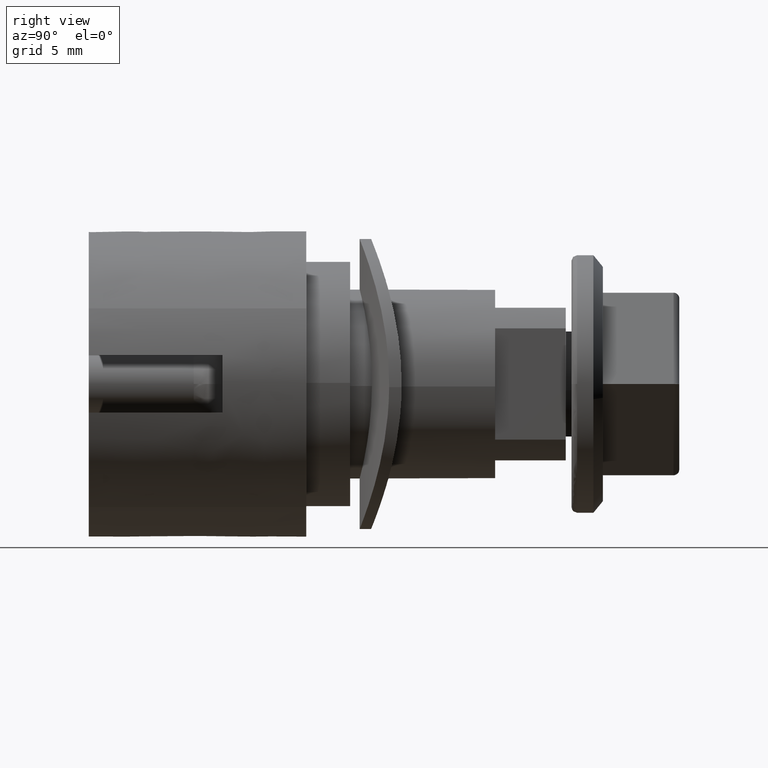
[diagram: clean part render]
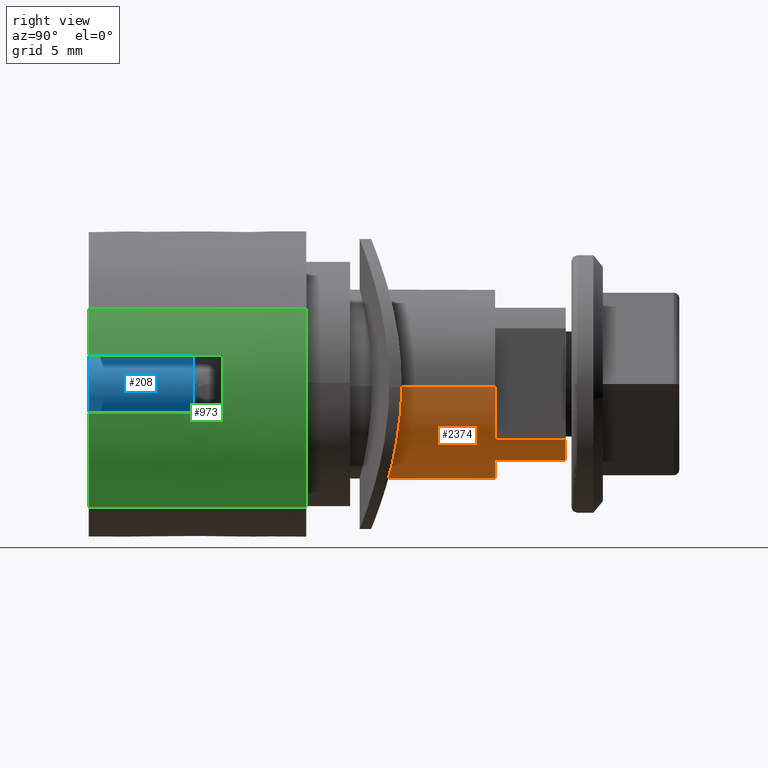
[diagram: same view with three faces highlighted in distinct colors, each labeled with its STEP entity id]
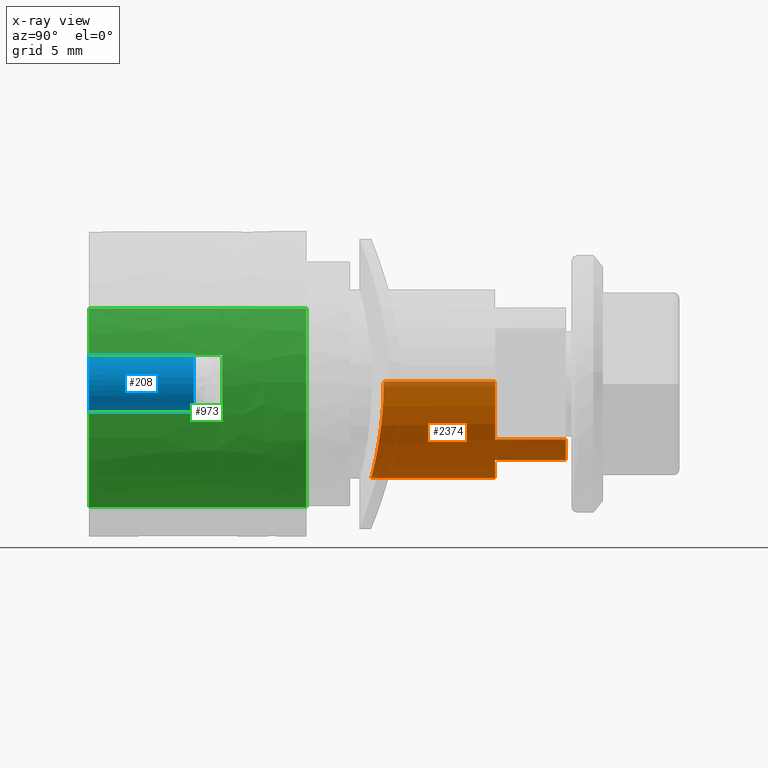
[diagram: x-ray of the same camera — body ghosted, the three highlighted faces saturated]
A machine part, right view with three faces highlighted in distinct colors.
The next image is the same camera in x-ray (body ghosted, the three faces saturated) — at least one of them is partly hidden behind the body in this view.
Their STEP definitions:

[orange] entity #2374 — the highlighted face is a freeform B-spline surface patch.
#1971=CARTESIAN_POINT('',(4.948303969794191,14.300000679224910,-0.129576105088257));
#1972=VERTEX_POINT('',#1971);
#2061=CARTESIAN_POINT('',(-4.948303968572731,14.300000679212420,0.129576095033903));
#2062=VERTEX_POINT('',#2061);
#2076=CARTESIAN_POINT('',(-4.948303201718987,8.461080547687736,0.129575662959156));
#2077=VERTEX_POINT('',#2076);
#2078=CARTESIAN_POINT('',(-4.948303968572731,14.300000679212420,0.129576095033903));
#2079=CARTESIAN_POINT('',(-4.948303201718987,8.461080547687736,0.129575662959156));
#2080=QUASI_UNIFORM_CURVE('',1,(#2078,#2079),.UNSPECIFIED.,.F.,.U.);
#2081=EDGE_CURVE('',#2062,#2077,#2080,.T.);
#2123=CARTESIAN_POINT('',(4.948309888105410,8.461081540190564,-0.129576037672904));
#2124=VERTEX_POINT('',#2123);
#2166=CARTESIAN_POINT('',(4.948303969794191,14.300000679224910,-0.129576105088257));
#2167=CARTESIAN_POINT('',(4.948309888105410,8.461081540190564,-0.129576037672904));
#2168=QUASI_UNIFORM_CURVE('',1,(#2166,#2167),.UNSPECIFIED.,.F.,.U.);
#2169=EDGE_CURVE('',#1972,#2124,#2168,.T.);
#2174=CARTESIAN_POINT('',(-4.948303961655311,18.255000838738340,0.129575915448601));
#2175=CARTESIAN_POINT('',(-5.077879861095710,18.255000838738333,-4.818728046206710));
#2176=CARTESIAN_POINT('',(-0.129575899440400,18.255000838738340,-4.948303945647110));
#2177=CARTESIAN_POINT('',(4.818728062214912,18.255000838738333,-5.077879845087510));
#2178=CARTESIAN_POINT('',(4.948303961655311,18.255000838738340,-0.129575883432199));
#2179=CARTESIAN_POINT('',(-4.948303961655311,7.538626520212205,0.129575915448601));
#2180=CARTESIAN_POINT('',(-5.077879861095710,7.538626520212205,-4.818728046206710));
#2181=CARTESIAN_POINT('',(-0.129575899440400,7.538626520212205,-4.948303945647110));
#2182=CARTESIAN_POINT('',(4.818728062214912,7.538626520212205,-5.077879845087510));
#2183=CARTESIAN_POINT('',(4.948303961655311,7.538626520212205,-0.129575883432199));
#2191=(BOUNDED_SURFACE()B_SPLINE_SURFACE(2,1,((#2174,#2179),(#2175,#2180),(#2176,#2181),(#2177,#2182),(#2178,#2183)),.UNSPECIFIED.,.F.,.F.,.U.)B_SPLINE_SURFACE_WITH_KNOTS((3,2,3),(2,2),(0.0,8.201428871487584,16.402857742975169),(0.0,10.716374318526130),.UNSPECIFIED.)GEOMETRIC_REPRESENTATION_ITEM()RATIONAL_B_SPLINE_SURFACE(((1.0,1.0),(0.707106781186548,0.707106781186548),(1.0,1.0),(0.707106781186548,0.707106781186548),(1.0,1.0)))REPRESENTATION_ITEM('')SURFACE());
#2192=CARTESIAN_POINT('',(4.000000189989706,14.300000679213779,-2.915904800862700));
#2193=VERTEX_POINT('',#2192);
#2194=CARTESIAN_POINT('',(4.000000189989705,14.300000679213779,-2.915904800862703));
#2195=CARTESIAN_POINT('',(4.907956427021512,14.300000679213785,-1.670382272296253));
#2196=CARTESIAN_POINT('',(4.948303969794191,14.300000679224906,-0.129576105088257));
#2204=(BOUNDED_CURVE()B_SPLINE_CURVE(2,(#2194,#2195,#2196),.UNSPECIFIED.,.F.,.U.)B_SPLINE_CURVE_WITH_KNOTS((3,3),(0.0,0.479909785443835),.UNSPECIFIED.)CURVE()GEOMETRIC_REPRESENTATION_ITEM()RATIONAL_B_SPLINE_CURVE((1.0,0.907896101783504,0.904195327630246))REPRESENTATION_ITEM(''));
#2205=EDGE_CURVE('',#2193,#1972,#2204,.T.);
#2206=ORIENTED_EDGE('',*,*,#2205,.T.);
#2207=ORIENTED_EDGE('',*,*,#2169,.T.);
#2208=CARTESIAN_POINT('',(2.547875E-015,7.800001503590891,-4.950000187087701));
#2209=VERTEX_POINT('',#2208);
#2210=CARTESIAN_POINT('',(2.547875E-015,7.800001503590891,-4.950000187087701));
#2211=CARTESIAN_POINT('',(0.328565802203363,7.800001506756071,-4.950000181880530));
#2212=CARTESIAN_POINT('',(0.651360683835892,7.808579682102557,-4.917613294535453));
#2213=CARTESIAN_POINT('',(1.127314387881248,7.833070356695788,-4.822637735079380));
#2214=CARTESIAN_POINT('',(1.284582624919601,7.843173453398920,-4.783187973063831));
#2215=CARTESIAN_POINT('',(1.518375105779641,7.861091382838361,-4.712077086516351));
#2216=CARTESIAN_POINT('',(1.596167402377649,7.867544283339329,-4.686300731647533));
#2217=CARTESIAN_POINT('',(1.749860175319351,7.881239199270708,-4.631107153848819));
#2218=CARTESIAN_POINT('',(1.825696381707885,7.888471999314381,-4.601728013298541));
#2219=CARTESIAN_POINT('',(2.199947410696963,7.926399076542992,-4.446106849174835));
#2220=CARTESIAN_POINT('',(2.483713984891425,7.962376783956255,-4.293949659177282));
#2221=CARTESIAN_POINT('',(2.819331722734231,8.011909770579470,-4.069444556440089));
#2222=CARTESIAN_POINT('',(2.885491960458393,8.022044489121107,-4.022811851138254));
#2223=CARTESIAN_POINT('',(3.015861362896268,8.042706546790594,-3.926023156870850));
#2224=CARTESIAN_POINT('',(3.080143415501214,8.053248026191131,-3.875793237738940));
#2225=CARTESIAN_POINT('',(3.268024676183587,8.085017277165928,-3.721395142434313));
#2226=CARTESIAN_POINT('',(3.387347164439069,8.106492491312741,-3.613055831373172));
#2227=CARTESIAN_POINT('',(3.728083554634873,8.170896553641882,-3.272172893343775));
#2228=CARTESIAN_POINT('',(3.932441927632493,8.213821040808556,-3.023928928093146));
#2229=CARTESIAN_POINT('',(4.158594947921709,8.264389936213927,-2.686106413888308));
#2230=CARTESIAN_POINT('',(4.202280992557644,8.274334312672291,-2.617226804682566));
#2231=CARTESIAN_POINT('',(4.285741582752220,8.293620380747543,-2.478196717121113));
#2232=CARTESIAN_POINT('',(4.325639998978700,8.302989603785106,-2.407865390125910));
#2233=CARTESIAN_POINT('',(4.439921930421701,8.330184415168910,-2.194448325018519));
#2234=CARTESIAN_POINT('',(4.577888459193713,8.364009393997161,-1.903441863482128));
#2235=CARTESIAN_POINT('',(4.687251687749474,8.392002371830833,-1.599525987454772));
#2236=CARTESIAN_POINT('',(4.758301972756732,8.410439421573861,-1.366603336825016));
#2237=CARTESIAN_POINT('',(4.780153296457111,8.416158670510997,-1.288130011733749));
#2238=CARTESIAN_POINT('',(4.820106728149837,8.426679638635774,-1.129475132183309));
#2239=CARTESIAN_POINT('',(4.838154070618979,8.431466997543721,-1.049458160351682));
#2240=CARTESIAN_POINT('',(4.909691784823825,8.450531943382854,-0.691282414196187));
#2241=CARTESIAN_POINT('',(4.940977929024959,8.459073722799653,-0.411299137118093));
#2242=CARTESIAN_POINT('',(4.948309888105410,8.461081540190564,-0.129576037672904));
#2243=B_SPLINE_CURVE_WITH_KNOTS('',3,(#2210,#2211,#2212,#2213,#2214,#2215,#2216,#2217,#2218,#2219,#2220,#2221,#2222,#2223,#2224,#2225,#2226,#2227,#2228,#2229,#2230,#2231,#2232,#2233,#2234,#2235,#2236,#2237,#2238,#2239,#2240,#2241,#2242),.UNSPECIFIED.,.F.,.U.,(4,2,2,2,2,2,2,2,2,2,2,2,1,2,2,2,4),(0.0,0.031250000000000,0.046875000000000,0.054687500000000,0.062500000000000,0.093750000000000,0.101562500000000,0.109375000000000,0.124999999999999,0.156249999999999,0.164062499999999,0.171874999999999,0.187500000000000,0.203125000000000,0.210937500000000,0.218750000000000,0.245937583036892),.UNSPECIFIED.);
#2244=EDGE_CURVE('',#2209,#2124,#2243,.T.);
#2245=ORIENTED_EDGE('',*,*,#2244,.F.);
#2246=CARTESIAN_POINT('',(-4.948303201718987,8.461080547687736,0.129575662959156));
#2247=CARTESIAN_POINT('',(-4.949414670486870,8.461383763965586,0.087098047854760));
#2248=CARTESIAN_POINT('',(-4.949979656223850,8.461537623912413,0.044659125554708));
#2249=CARTESIAN_POINT('',(-4.950153896517091,8.461585043479103,-0.324140249588750));
#2250=CARTESIAN_POINT('',(-4.918320467636426,8.452833603563178,-0.646408532493469));
#2251=CARTESIAN_POINT('',(-4.839310589304685,8.431772812407054,-1.044103029600386));
#2252=CARTESIAN_POINT('',(-4.821529694682602,8.427054811303377,-1.123382684105857));
#2253=CARTESIAN_POINT('',(-4.781956296699725,8.416630217107075,-1.281417661439505));
#2254=CARTESIAN_POINT('',(-4.760111677919125,8.410910088610601,-1.360341470482965));
#2255=CARTESIAN_POINT('',(-4.688797672238097,8.392397492153210,-1.595129740905107));
#2256=CARTESIAN_POINT('',(-4.633934256282295,8.378350169516239,-1.747930231390759));
#2257=CARTESIAN_POINT('',(-4.448161943702115,8.331904817488770,-2.195626695417676));
#2258=CARTESIAN_POINT('',(-4.296280345213086,8.295201425520705,-2.479918318824671));
#2259=CARTESIAN_POINT('',(-4.070699595572671,8.244729057946154,-2.817534663830697));
#2260=CARTESIAN_POINT('',(-4.023692727010591,8.234387129474477,-2.884263877163773));
#2261=CARTESIAN_POINT('',(-3.927031774849541,8.213532837771897,-3.014548508427182));
#2262=CARTESIAN_POINT('',(-3.877277027918115,8.202997331473462,-3.078266715831047));
#2263=CARTESIAN_POINT('',(-3.723806677836616,8.171184129882487,-3.265236681144144));
#2264=CARTESIAN_POINT('',(-3.615895468575261,8.149700329920830,-3.384314243219637));
#2265=CARTESIAN_POINT('',(-3.388968930732494,8.106788942637104,-3.611533263833733));
#2266=CARTESIAN_POINT('',(-3.269953801458025,8.085360296067600,-3.719674722821864));
#2267=CARTESIAN_POINT('',(-3.082916069738822,8.053707954885596,-3.873583534339372));
#2268=CARTESIAN_POINT('',(-3.019148324516955,8.043238994370871,-3.923499960413705));
#2269=CARTESIAN_POINT('',(-2.888703900332719,8.022541748264349,-4.020509708718101));
#2270=CARTESIAN_POINT('',(-2.822087199353500,8.012325573530193,-4.067541758518537));
#2271=CARTESIAN_POINT('',(-2.485360779864605,7.962582307369940,-4.293088336980646));
#2272=CARTESIAN_POINT('',(-2.201655300246121,7.926621723943589,-4.445160183353112));
#2273=CARTESIAN_POINT('',(-1.754621096806777,7.881244472704370,-4.631399894321245));
#2274=CARTESIAN_POINT('',(-1.602005274165911,7.867544778923343,-4.686450246029196));
#2275=CARTESIAN_POINT('',(-1.367435259312088,7.849502247310694,-4.758078016015721));
#2276=CARTESIAN_POINT('',(-1.288437591932387,7.843919671865476,-4.780071716270344));
#2277=CARTESIAN_POINT('',(-1.130223108288174,7.833748403525945,-4.819932858993728));
#2278=CARTESIAN_POINT('',(-1.050811339579745,7.829144250189528,-4.837861717655671));
#2279=CARTESIAN_POINT('',(-0.652243018915922,7.808583873389063,-4.917602945959236));
#2280=CARTESIAN_POINT('',(-0.328566002278947,7.800001500425713,-4.950000187087700));
#2281=CARTESIAN_POINT('',(2.927346E-015,7.800001503590891,-4.950000187087701));
#2282=B_SPLINE_CURVE_WITH_KNOTS('',3,(#2246,#2247,#2248,#2249,#2250,#2251,#2252,#2253,#2254,#2255,#2256,#2257,#2258,#2259,#2260,#2261,#2262,#2263,#2264,#2265,#2266,#2267,#2268,#2269,#2270,#2271,#2272,#2273,#2274,#2275,#2276,#2277,#2278,#2279,#2280,#2281),.UNSPECIFIED.,.F.,.U.,(4,2,2,2,2,2,2,2,2,2,2,2,2,2,2,2,2,4),(0.745949157478613,0.750000000000001,0.781250000000001,0.789062500000001,0.796875000000001,0.812500000000001,0.843750000000001,0.851562500000001,0.859375000000000,0.875000000000000,0.890625000000001,0.898437500000000,0.906250000000000,0.937500000000000,0.953125000000000,0.960937500000000,0.968750000000000,1.0),.UNSPECIFIED.);
#2283=EDGE_CURVE('',#2077,#2209,#2282,.T.);
#2284=ORIENTED_EDGE('',*,*,#2283,.F.);
#2285=ORIENTED_EDGE('',*,*,#2081,.F.);
#2286=CARTESIAN_POINT('',(-4.000000156497686,14.300000679213699,-2.915904776447805));
#2287=VERTEX_POINT('',#2286);
#2288=CARTESIAN_POINT('',(-4.948303968572731,14.300000679212429,0.129576095033903));
#2289=CARTESIAN_POINT('',(-4.992404173843633,14.300000679213738,-1.554537916675242));
#2290=CARTESIAN_POINT('',(-4.000000156497686,14.300000679213699,-2.915904776447805));
#2298=(BOUNDED_CURVE()B_SPLINE_CURVE(2,(#2288,#2289,#2290),.UNSPECIFIED.,.F.,.U.)B_SPLINE_CURVE_WITH_KNOTS((3,3),(0.479909793967272,1.0),.UNSPECIFIED.)CURVE()GEOMETRIC_REPRESENTATION_ITEM()RATIONAL_B_SPLINE_CURVE((0.904195327498791,0.900184707933110,1.0))REPRESENTATION_ITEM(''));
#2299=EDGE_CURVE('',#2062,#2287,#2298,.T.);
#2300=ORIENTED_EDGE('',*,*,#2299,.T.);
#2301=CARTESIAN_POINT('',(-4.000000189989706,18.000000854954251,-2.915904800862690));
#2302=VERTEX_POINT('',#2301);
#2303=CARTESIAN_POINT('',(-4.000000189989706,18.000000854954251,-2.915904800862690));
#2304=CARTESIAN_POINT('',(-4.000000156497686,14.300000679213699,-2.915904776447805));
#2305=QUASI_UNIFORM_CURVE('',1,(#2303,#2304),.UNSPECIFIED.,.F.,.U.);
#2306=EDGE_CURVE('',#2302,#2287,#2305,.T.);
#2307=ORIENTED_EDGE('',*,*,#2306,.F.);
#2308=CARTESIAN_POINT('',(-2.915904800862700,18.000000854954251,-4.000000189989706));
#2309=VERTEX_POINT('',#2308);
#2310=CARTESIAN_POINT('',(-4.000000189989706,18.000000854954251,-2.915904800862690));
#2311=CARTESIAN_POINT('',(-3.542920578698532,18.000000854954255,-3.542920578698527));
#2312=CARTESIAN_POINT('',(-2.915904800862700,18.000000854954251,-4.000000189989706));
#2320=(BOUNDED_CURVE()B_SPLINE_CURVE(2,(#2310,#2311,#2312),.UNSPECIFIED.,.F.,.U.)CURVE()GEOMETRIC_REPRESENTATION_ITEM()QUASI_UNIFORM_CURVE()RATIONAL_B_SPLINE_CURVE((1.0,0.987935976781655,1.0))REPRESENTATION_ITEM(''));
#2321=EDGE_CURVE('',#2302,#2309,#2320,.T.);
#2322=ORIENTED_EDGE('',*,*,#2321,.T.);
#2323=CARTESIAN_POINT('',(-2.915904800862700,14.300000679213779,-4.000000189989706));
#2324=VERTEX_POINT('',#2323);
#2325=CARTESIAN_POINT('',(-2.915904800862700,18.000000854954251,-4.000000189989706));
#2326=CARTESIAN_POINT('',(-2.915904800862700,14.300000679213779,-4.000000189989706));
#2327=QUASI_UNIFORM_CURVE('',1,(#2325,#2326),.UNSPECIFIED.,.F.,.U.);
#2328=EDGE_CURVE('',#2309,#2324,#2327,.T.);
#2329=ORIENTED_EDGE('',*,*,#2328,.T.);
#2330=CARTESIAN_POINT('',(2.915904774382555,14.300000679213699,-4.000000153664600));
#2331=VERTEX_POINT('',#2330);
#2332=CARTESIAN_POINT('',(-2.915904800862701,14.300000679213779,-4.000000189989707));
#2333=CARTESIAN_POINT('',(-6.071532E-015,14.300000679213788,-6.125625290951518));
#2334=CARTESIAN_POINT('',(2.915904774382555,14.300000679213699,-4.000000153664600));
#2342=(BOUNDED_CURVE()B_SPLINE_CURVE(2,(#2332,#2333,#2334),.UNSPECIFIED.,.F.,.U.)CURVE()GEOMETRIC_REPRESENTATION_ITEM()QUASI_UNIFORM_CURVE()RATIONAL_B_SPLINE_CURVE((1.0,0.808080808080802,1.0))REPRESENTATION_ITEM(''));
#2343=EDGE_CURVE('',#2324,#2331,#2342,.T.);
#2344=ORIENTED_EDGE('',*,*,#2343,.T.);
#2345=CARTESIAN_POINT('',(2.915904800862690,18.000000854954251,-4.000000189989706));
#2346=VERTEX_POINT('',#2345);
#2347=CARTESIAN_POINT('',(2.915904800862690,18.000000854954251,-4.000000189989706));
#2348=CARTESIAN_POINT('',(2.915904774382555,14.300000679213699,-4.000000153664600));
#2349=QUASI_UNIFORM_CURVE('',1,(#2347,#2348),.UNSPECIFIED.,.F.,.U.);
#2350=EDGE_CURVE('',#2346,#2331,#2349,.T.);
#2351=ORIENTED_EDGE('',*,*,#2350,.F.);
#2352=CARTESIAN_POINT('',(4.000000189989706,18.000000854954251,-2.915904800862700));
#2353=VERTEX_POINT('',#2352);
#2354=CARTESIAN_POINT('',(2.915904800862690,18.000000854954251,-4.000000189989706));
#2355=CARTESIAN_POINT('',(3.542920578698528,18.000000854954251,-3.542920578698531));
#2356=CARTESIAN_POINT('',(4.000000189989706,18.000000854954251,-2.915904800862700));
#2364=(BOUNDED_CURVE()B_SPLINE_CURVE(2,(#2354,#2355,#2356),.UNSPECIFIED.,.F.,.U.)CURVE()GEOMETRIC_REPRESENTATION_ITEM()QUASI_UNIFORM_CURVE()RATIONAL_B_SPLINE_CURVE((1.0,0.987935976781655,1.0))REPRESENTATION_ITEM(''));
#2365=EDGE_CURVE('',#2346,#2353,#2364,.T.);
#2366=ORIENTED_EDGE('',*,*,#2365,.T.);
#2367=CARTESIAN_POINT('',(4.000000189989706,18.000000854954251,-2.915904800862700));
#2368=CARTESIAN_POINT('',(4.000000189989706,14.300000679213779,-2.915904800862700));
#2369=QUASI_UNIFORM_CURVE('',1,(#2367,#2368),.UNSPECIFIED.,.F.,.U.);
#2370=EDGE_CURVE('',#2353,#2193,#2369,.T.);
#2371=ORIENTED_EDGE('',*,*,#2370,.T.);
#2372=EDGE_LOOP('',(#2206,#2207,#2245,#2284,#2285,#2300,#2307,#2322,#2329,#2344,#2351,#2366,#2371));
#2373=FACE_OUTER_BOUND('',#2372,.T.);
#2374=ADVANCED_FACE('',(#2373),#2191,.T.);

[blue] entity #208 — the highlighted face is a freeform B-spline surface patch.
#44=CARTESIAN_POINT('',(-0.527426986638795,-1.362499999992686,-1.404215434861639));
#45=CARTESIAN_POINT('',(-0.316484192605304,-1.362499999992686,-1.483446099507634));
#46=CARTESIAN_POINT('',(-0.091572813651760,-1.362499999992686,-1.497202268746092));
#47=CARTESIAN_POINT('',(1.405629455094332,-1.362499999992686,-1.588775082397852));
#48=CARTESIAN_POINT('',(1.497202268746092,-1.362499999992686,-0.091572813651760));
#49=CARTESIAN_POINT('',(1.588775082397852,-1.362499999992686,1.405629455094332));
#50=CARTESIAN_POINT('',(0.091572813651760,-1.362499999992686,1.497202268746092));
#51=CARTESIAN_POINT('',(-1.405629455094332,-1.362499999992686,1.588775082397852));
#52=CARTESIAN_POINT('',(-1.497202268746092,-1.362499999992686,0.091572813651760));
#53=CARTESIAN_POINT('',(-0.527426986638795,-7.140937500000184,-1.404215434861639));
#54=CARTESIAN_POINT('',(-0.316484192605304,-7.140937500000184,-1.483446099507634));
#55=CARTESIAN_POINT('',(-0.091572813651760,-7.140937500000184,-1.497202268746092));
#56=CARTESIAN_POINT('',(1.405629455094332,-7.140937500000184,-1.588775082397852));
#57=CARTESIAN_POINT('',(1.497202268746092,-7.140937500000184,-0.091572813651760));
#58=CARTESIAN_POINT('',(1.588775082397852,-7.140937500000184,1.405629455094332));
#59=CARTESIAN_POINT('',(0.091572813651760,-7.140937500000184,1.497202268746092));
#60=CARTESIAN_POINT('',(-1.405629455094332,-7.140937500000184,1.588775082397852));
#61=CARTESIAN_POINT('',(-1.497202268746092,-7.140937500000184,0.091572813651760));
#69=(BOUNDED_SURFACE()B_SPLINE_SURFACE(2,1,((#44,#53),(#45,#54),(#46,#55),(#47,#56),(#48,#57),(#49,#58),(#50,#59),(#51,#60),(#52,#61)),.UNSPECIFIED.,.F.,.F.,.U.)B_SPLINE_SURFACE_WITH_KNOTS((3,2,2,2,3),(2,2),(1.256637061435917,1.570796326794897,3.141592653589793,4.712388980384690,6.283185307179586),(0.0,5.778437500007498),.UNSPECIFIED.)GEOMETRIC_REPRESENTATION_ITEM()RATIONAL_B_SPLINE_SURFACE(((0.906274169979695,0.906274169979695),(0.941421356237309,0.941421356237309),(1.0,1.0),(0.707106781186548,0.707106781186548),(1.0,1.0),(0.707106781186548,0.707106781186548),(1.0,1.0),(0.707106781186548,0.707106781186548),(1.0,1.0)))REPRESENTATION_ITEM('')SURFACE());
#70=CARTESIAN_POINT('',(-0.527426986648774,-7.0,-1.404215434857892));
#71=VERTEX_POINT('',#70);
#72=CARTESIAN_POINT('',(0.0,-7.0,-1.500000071246180));
#73=VERTEX_POINT('',#72);
#74=CARTESIAN_POINT('',(-0.527426986648774,-7.0,-1.404215434857892));
#75=CARTESIAN_POINT('',(-0.272411092049984,-7.0,-1.500000071246181));
#76=CARTESIAN_POINT('',(0.0,-7.0,-1.500000071246180));
#84=(BOUNDED_CURVE()B_SPLINE_CURVE(2,(#74,#75,#76),.UNSPECIFIED.,.F.,.U.)B_SPLINE_CURVE_WITH_KNOTS((3,3),(0.440284170896665,0.500000000000000),.UNSPECIFIED.)CURVE()GEOMETRIC_REPRESENTATION_ITEM()RATIONAL_B_SPLINE_CURVE((0.893499554633019,0.930038554399240,1.0))REPRESENTATION_ITEM(''));
#85=EDGE_CURVE('',#71,#73,#84,.T.);
#86=ORIENTED_EDGE('',*,*,#85,.F.);
#87=CARTESIAN_POINT('',(-0.527426986648774,-1.499999999999946,-1.404215434857892));
#88=VERTEX_POINT('',#87);
#89=CARTESIAN_POINT('',(-0.527426986648774,-1.499999999999946,-1.404215434857892));
#90=CARTESIAN_POINT('',(-0.527426986648774,-7.0,-1.404215434857892));
#91=QUASI_UNIFORM_CURVE('',1,(#89,#90),.UNSPECIFIED.,.F.,.U.);
#92=EDGE_CURVE('',#88,#71,#91,.T.);
#93=ORIENTED_EDGE('',*,*,#92,.F.);
#94=CARTESIAN_POINT('',(0.0,-1.499999999999946,-1.500000071246180));
#95=VERTEX_POINT('',#94);
#96=CARTESIAN_POINT('',(-0.527426986648774,-1.499999999999946,-1.404215434857892));
#97=CARTESIAN_POINT('',(-0.272411092049984,-1.499999999999946,-1.500000071246181));
#98=CARTESIAN_POINT('',(0.0,-1.499999999999946,-1.500000071246180));
#106=(BOUNDED_CURVE()B_SPLINE_CURVE(2,(#96,#97,#98),.UNSPECIFIED.,.F.,.U.)B_SPLINE_CURVE_WITH_KNOTS((3,3),(0.440284170896665,0.500000000000000),.UNSPECIFIED.)CURVE()GEOMETRIC_REPRESENTATION_ITEM()RATIONAL_B_SPLINE_CURVE((0.893499554633019,0.930038554399240,1.0))REPRESENTATION_ITEM(''));
#107=EDGE_CURVE('',#88,#95,#106,.T.);
#108=ORIENTED_EDGE('',*,*,#107,.T.);
#109=CARTESIAN_POINT('',(0.529952975167220,-1.499999999992864,-1.403264072742532));
#110=VERTEX_POINT('',#109);
#111=CARTESIAN_POINT('',(0.0,-1.499999999999946,-1.500000071246180));
#112=CARTESIAN_POINT('',(0.273805434535794,-1.499999999999946,-1.500000071246181));
#113=CARTESIAN_POINT('',(0.529952975167220,-1.499999999992864,-1.403264072742532));
#121=(BOUNDED_CURVE()B_SPLINE_CURVE(2,(#111,#112,#113),.UNSPECIFIED.,.F.,.U.)B_SPLINE_CURVE_WITH_KNOTS((3,3),(0.500000000000000,0.560000000001272),.UNSPECIFIED.)CURVE()GEOMETRIC_REPRESENTATION_ITEM()RATIONAL_B_SPLINE_CURVE((1.0,0.929705627483281,0.893152553775302))REPRESENTATION_ITEM(''));
#122=EDGE_CURVE('',#95,#110,#121,.T.);
#123=ORIENTED_EDGE('',*,*,#122,.T.);
#124=CARTESIAN_POINT('',(1.500000071246180,-1.499999999993437,0.0));
#125=VERTEX_POINT('',#124);
#126=CARTESIAN_POINT('',(0.529952975167220,-1.499999999992864,-1.403264072742532));
#127=CARTESIAN_POINT('',(1.500000071246176,-1.499999999999946,-1.036918668045526));
#128=CARTESIAN_POINT('',(1.500000071246180,-1.499999999993437,0.0));
#136=(BOUNDED_CURVE()B_SPLINE_CURVE(2,(#126,#127,#128),.UNSPECIFIED.,.F.,.U.)B_SPLINE_CURVE_WITH_KNOTS((3,3),(0.560000000001272,0.749999999999999),.UNSPECIFIED.)CURVE()GEOMETRIC_REPRESENTATION_ITEM()RATIONAL_B_SPLINE_CURVE((0.893152553775302,0.777401153703267,0.999999999999998))REPRESENTATION_ITEM(''));
#137=EDGE_CURVE('',#110,#125,#136,.T.);
#138=ORIENTED_EDGE('',*,*,#137,.T.);
#139=CARTESIAN_POINT('',(0.0,-1.499999999999946,1.500000071246180));
#140=VERTEX_POINT('',#139);
#141=CARTESIAN_POINT('',(1.500000071246180,-1.499999999993437,0.0));
#142=CARTESIAN_POINT('',(1.500000071246180,-1.499999999999946,1.500000071246180));
#143=CARTESIAN_POINT('',(0.0,-1.499999999999946,1.500000071246180));
#151=(BOUNDED_CURVE()B_SPLINE_CURVE(2,(#141,#142,#143),.UNSPECIFIED.,.F.,.U.)B_SPLINE_CURVE_WITH_KNOTS((3,3),(0.750000000000000,1.0),.UNSPECIFIED.)CURVE()GEOMETRIC_REPRESENTATION_ITEM()RATIONAL_B_SPLINE_CURVE((1.0,0.707106781186547,1.0))REPRESENTATION_ITEM(''));
#152=EDGE_CURVE('',#125,#140,#151,.T.);
#153=ORIENTED_EDGE('',*,*,#152,.T.);
#154=CARTESIAN_POINT('',(-1.497202268744390,-1.499999999999946,0.091572813679586));
#155=VERTEX_POINT('',#154);
#156=CARTESIAN_POINT('',(0.0,-1.499999999999946,1.500000071246180));
#157=CARTESIAN_POINT('',(-1.411059167327708,-1.499999999999946,1.500000071246180));
#158=CARTESIAN_POINT('',(-1.497202268744390,-1.499999999999946,0.091572813679586));
#166=(BOUNDED_CURVE()B_SPLINE_CURVE(2,(#156,#157,#158),.UNSPECIFIED.,.F.,.U.)B_SPLINE_CURVE_WITH_KNOTS((3,3),(0.0,0.239332962235555),.UNSPECIFIED.)CURVE()GEOMETRIC_REPRESENTATION_ITEM()RATIONAL_B_SPLINE_CURVE((1.0,0.719603993290680,0.976072041659456))REPRESENTATION_ITEM(''));
#167=EDGE_CURVE('',#140,#155,#166,.T.);
#168=ORIENTED_EDGE('',*,*,#167,.T.);
#169=CARTESIAN_POINT('',(-1.497202268744390,-7.0,0.091572813679586));
#170=VERTEX_POINT('',#169);
#171=CARTESIAN_POINT('',(-1.497202268744390,-1.499999999999946,0.091572813679586));
#172=CARTESIAN_POINT('',(-1.497202268744390,-7.0,0.091572813679586));
#173=QUASI_UNIFORM_CURVE('',1,(#171,#172),.UNSPECIFIED.,.F.,.U.);
#174=EDGE_CURVE('',#155,#170,#173,.T.);
#175=ORIENTED_EDGE('',*,*,#174,.T.);
#176=CARTESIAN_POINT('',(0.0,-7.0,1.500000071246180));
#177=VERTEX_POINT('',#176);
#178=CARTESIAN_POINT('',(0.0,-7.0,1.500000071246180));
#179=CARTESIAN_POINT('',(-1.411059167327708,-7.000000000000001,1.500000071246180));
#180=CARTESIAN_POINT('',(-1.497202268744390,-7.0,0.091572813679586));
#188=(BOUNDED_CURVE()B_SPLINE_CURVE(2,(#178,#179,#180),.UNSPECIFIED.,.F.,.U.)B_SPLINE_CURVE_WITH_KNOTS((3,3),(0.0,0.239332962235555),.UNSPECIFIED.)CURVE()GEOMETRIC_REPRESENTATION_ITEM()RATIONAL_B_SPLINE_CURVE((1.0,0.719603993290680,0.976072041659456))REPRESENTATION_ITEM(''));
#189=EDGE_CURVE('',#177,#170,#188,.T.);
#190=ORIENTED_EDGE('',*,*,#189,.F.);
#191=CARTESIAN_POINT('',(0.0,-7.0,-1.500000071246180));
#192=CARTESIAN_POINT('',(1.500000071246180,-6.999999999999999,-1.500000071246180));
#193=CARTESIAN_POINT('',(1.500000071246180,-7.0,0.0));
#194=CARTESIAN_POINT('',(1.500000071246180,-6.999999999999999,1.500000071246180));
#195=CARTESIAN_POINT('',(0.0,-7.0,1.500000071246180));
#203=(BOUNDED_CURVE()B_SPLINE_CURVE(2,(#191,#192,#193,#194,#195),.UNSPECIFIED.,.F.,.U.)B_SPLINE_CURVE_WITH_KNOTS((3,2,3),(0.500000000000000,0.750000000000000,1.0),.UNSPECIFIED.)CURVE()GEOMETRIC_REPRESENTATION_ITEM()RATIONAL_B_SPLINE_CURVE((1.0,0.707106781186547,1.0,0.707106781186547,1.0))REPRESENTATION_ITEM(''));
#204=EDGE_CURVE('',#73,#177,#203,.T.);
#205=ORIENTED_EDGE('',*,*,#204,.F.);
#206=EDGE_LOOP('',(#86,#93,#108,#123,#138,#153,#168,#175,#190,#205));
#207=FACE_OUTER_BOUND('',#206,.T.);
#208=ADVANCED_FACE('',(#207),#69,.T.);

[green] entity #973 — the highlighted face is a freeform B-spline surface patch.
#756=CARTESIAN_POINT('',(6.950677806079058,4.400000209999988,3.960818616869772));
#757=VERTEX_POINT('',#756);
#790=CARTESIAN_POINT('',(4.736884566080258,4.400000209999975,-6.446854324963804));
#791=VERTEX_POINT('',#790);
#805=CARTESIAN_POINT('',(4.736883952768762,-6.999999999999999,-6.446854775599874));
#806=VERTEX_POINT('',#805);
#807=CARTESIAN_POINT('',(4.736884566080258,4.400000209999975,-6.446854324963804));
#808=CARTESIAN_POINT('',(4.736883952768762,-6.999999999999999,-6.446854775599874));
#809=QUASI_UNIFORM_CURVE('',1,(#807,#808),.UNSPECIFIED.,.F.,.U.);
#810=EDGE_CURVE('',#791,#806,#809,.T.);
#858=CARTESIAN_POINT('',(6.950677621538427,-7.0,3.960818940712828));
#859=VERTEX_POINT('',#858);
#875=CARTESIAN_POINT('',(6.950677806079058,4.400000209999988,3.960818616869772));
#876=CARTESIAN_POINT('',(6.950677621538427,-7.0,3.960818940712828));
#877=QUASI_UNIFORM_CURVE('',1,(#875,#876),.UNSPECIFIED.,.F.,.U.);
#878=EDGE_CURVE('',#757,#859,#877,.T.);
#883=CARTESIAN_POINT('',(4.736884643724912,4.685000215249976,-6.446854267913689));
#884=CARTESIAN_POINT('',(10.477754865742812,4.685000215249976,-2.228697804902061));
#885=CARTESIAN_POINT('',(6.950676112668893,4.685000215249976,3.960821588565669));
#886=CARTESIAN_POINT('',(4.736884643724912,-7.292125005381250,-6.446854267913689));
#887=CARTESIAN_POINT('',(10.477754865742812,-7.292125005381250,-2.228697804902061));
#888=CARTESIAN_POINT('',(6.950676112668893,-7.292125005381249,3.960821588565669));
#896=(BOUNDED_SURFACE()B_SPLINE_SURFACE(2,1,((#883,#886),(#884,#887),(#885,#888)),.UNSPECIFIED.,.F.,.F.,.U.)B_SPLINE_SURFACE_WITH_KNOTS((3,3),(2,2),(0.0,12.181072229318300),(0.0,11.977125220631230),.UNSPECIFIED.)GEOMETRIC_REPRESENTATION_ITEM()RATIONAL_B_SPLINE_SURFACE(((1.0,1.0),(0.730538238691624,0.730538238691624),(0.956886118190660,0.956886118190660)))REPRESENTATION_ITEM('')SURFACE());
#897=CARTESIAN_POINT('',(4.736884566080259,4.400000209999976,-6.446854324963804));
#898=CARTESIAN_POINT('',(8.000000379979609,4.400000209999975,-4.049250506588095));
#899=CARTESIAN_POINT('',(8.000000379979609,4.400000209999975,0.0));
#900=CARTESIAN_POINT('',(8.000000379979609,4.400000209999975,2.119405557771778));
#901=CARTESIAN_POINT('',(6.950677806079058,4.400000209999988,3.960818616869773));
#909=(BOUNDED_CURVE()B_SPLINE_CURVE(2,(#897,#898,#899,#900,#901),.UNSPECIFIED.,.F.,.U.)B_SPLINE_CURVE_WITH_KNOTS((3,2,3),(0.602062773267510,0.750000000000000,0.834403307781611),.UNSPECIFIED.)CURVE()GEOMETRIC_REPRESENTATION_ITEM()RATIONAL_B_SPLINE_CURVE((0.858484459941491,0.826680757919942,1.0,0.901115374021366,0.869000264213485))REPRESENTATION_ITEM(''));
#910=EDGE_CURVE('',#791,#757,#909,.T.);
#911=ORIENTED_EDGE('',*,*,#910,.T.);
#912=ORIENTED_EDGE('',*,*,#878,.T.);
#913=CARTESIAN_POINT('',(7.858117195991370,-7.0,1.500000071246175));
#914=VERTEX_POINT('',#913);
#915=CARTESIAN_POINT('',(7.858117195991375,-7.0,1.500000071246176));
#916=CARTESIAN_POINT('',(7.608857987189674,-7.0,2.805805392519657));
#917=CARTESIAN_POINT('',(6.950677621538427,-6.999999999999999,3.960818940712828));
#925=(BOUNDED_CURVE()B_SPLINE_CURVE(2,(#915,#916,#917),.UNSPECIFIED.,.F.,.U.)B_SPLINE_CURVE_WITH_KNOTS((3,3),(0.0,0.122998849568754),.UNSPECIFIED.)CURVE()GEOMETRIC_REPRESENTATION_ITEM()RATIONAL_B_SPLINE_CURVE((1.0,0.943556258520168,0.914882578109837))REPRESENTATION_ITEM(''));
#926=EDGE_CURVE('',#914,#859,#925,.T.);
#927=ORIENTED_EDGE('',*,*,#926,.F.);
#928=CARTESIAN_POINT('',(7.858117195991370,0.0,1.500000071246175));
#929=VERTEX_POINT('',#928);
#930=CARTESIAN_POINT('',(7.858117195991370,0.0,1.500000071246175));
#931=CARTESIAN_POINT('',(7.858117195991370,-7.0,1.500000071246175));
#932=QUASI_UNIFORM_CURVE('',1,(#930,#931),.UNSPECIFIED.,.F.,.U.);
#933=EDGE_CURVE('',#929,#914,#932,.T.);
#934=ORIENTED_EDGE('',*,*,#933,.F.);
#935=CARTESIAN_POINT('',(7.858117195991370,0.0,-1.500000071246165));
#936=VERTEX_POINT('',#935);
#937=CARTESIAN_POINT('',(7.858117195991369,0.0,-1.500000071246163));
#938=CARTESIAN_POINT('',(8.144445352930323,0.0,6.505213E-015));
#939=CARTESIAN_POINT('',(7.858117195991367,0.0,1.500000071246175));
#947=(BOUNDED_CURVE()B_SPLINE_CURVE(2,(#937,#938,#939),.UNSPECIFIED.,.F.,.U.)CURVE()GEOMETRIC_REPRESENTATION_ITEM()QUASI_UNIFORM_CURVE()RATIONAL_B_SPLINE_CURVE((1.0,0.982264602843857,1.0))REPRESENTATION_ITEM(''));
#948=EDGE_CURVE('',#936,#929,#947,.T.);
#949=ORIENTED_EDGE('',*,*,#948,.F.);
#950=CARTESIAN_POINT('',(7.858117195991370,-7.0,-1.500000071246165));
#951=VERTEX_POINT('',#950);
#952=CARTESIAN_POINT('',(7.858117195991370,0.0,-1.500000071246165));
#953=CARTESIAN_POINT('',(7.858117195991370,-7.0,-1.500000071246165));
#954=QUASI_UNIFORM_CURVE('',1,(#952,#953),.UNSPECIFIED.,.F.,.U.);
#955=EDGE_CURVE('',#936,#951,#954,.T.);
#956=ORIENTED_EDGE('',*,*,#955,.T.);
#957=CARTESIAN_POINT('',(4.736883952768762,-6.999999999999999,-6.446854775599874));
#958=CARTESIAN_POINT('',(7.268972066909098,-7.0,-4.586380904501648));
#959=CARTESIAN_POINT('',(7.858117195991377,-7.0,-1.500000071246165));
#967=(BOUNDED_CURVE()B_SPLINE_CURVE(2,(#957,#958,#959),.UNSPECIFIED.,.F.,.U.)B_SPLINE_CURVE_WITH_KNOTS((3,3),(0.730058150697014,1.0),.UNSPECIFIED.)CURVE()GEOMETRIC_REPRESENTATION_ITEM()RATIONAL_B_SPLINE_CURVE((0.886005846167208,0.876124630351695,1.0))REPRESENTATION_ITEM(''));
#968=EDGE_CURVE('',#806,#951,#967,.T.);
#969=ORIENTED_EDGE('',*,*,#968,.F.);
#970=ORIENTED_EDGE('',*,*,#810,.F.);
#971=EDGE_LOOP('',(#911,#912,#927,#934,#949,#956,#969,#970));
#972=FACE_OUTER_BOUND('',#971,.T.);
#973=ADVANCED_FACE('',(#972),#896,.T.);